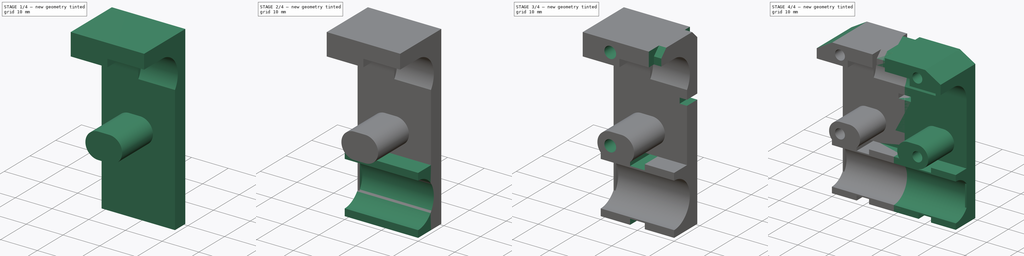
[diagram: build sequence overview — one tinted view per stage of 4, left to right]
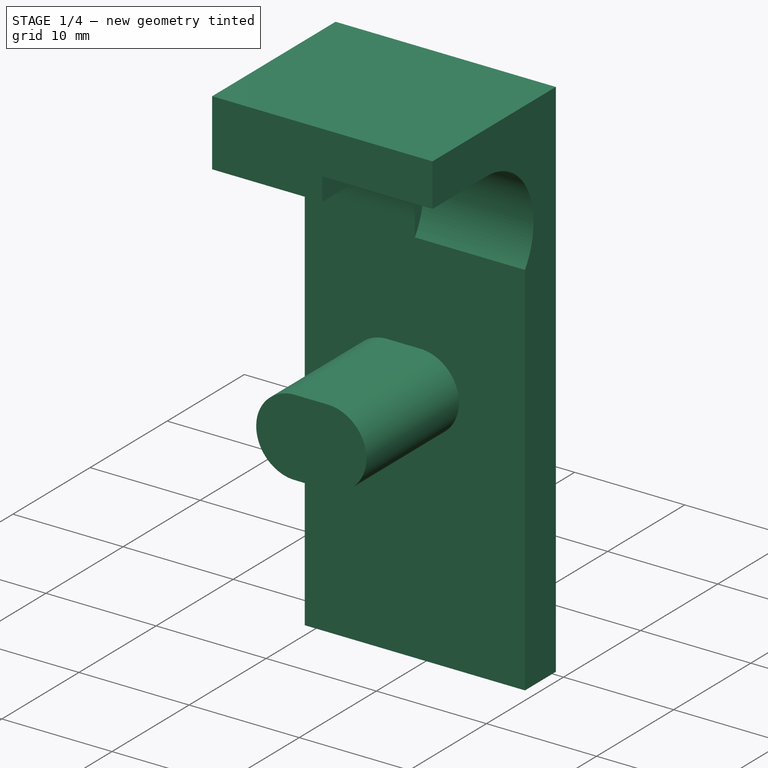
[diagram: stage 1 of 4 — iso view after this stage's code; geometry added in this stage tinted green]
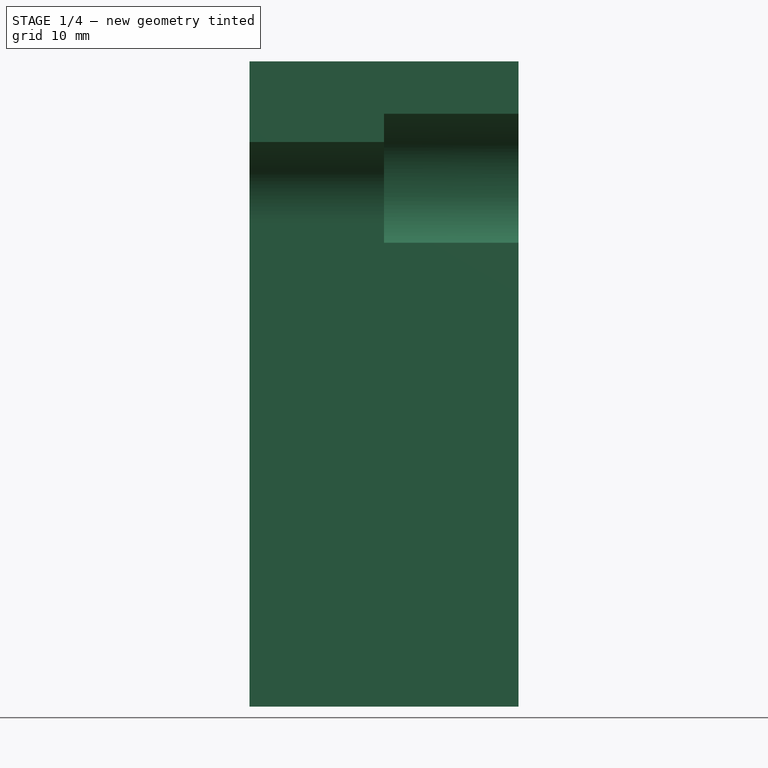
[diagram: stage 1 of 4 — front view after this stage's code; geometry added in this stage tinted green]
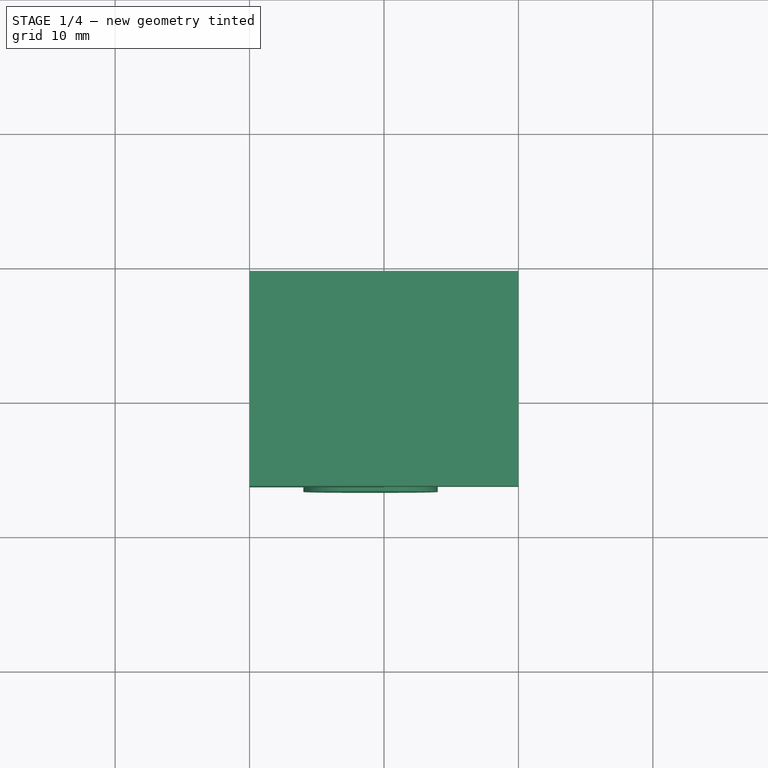
[diagram: stage 1 of 4 — top view after this stage's code; geometry added in this stage tinted green]
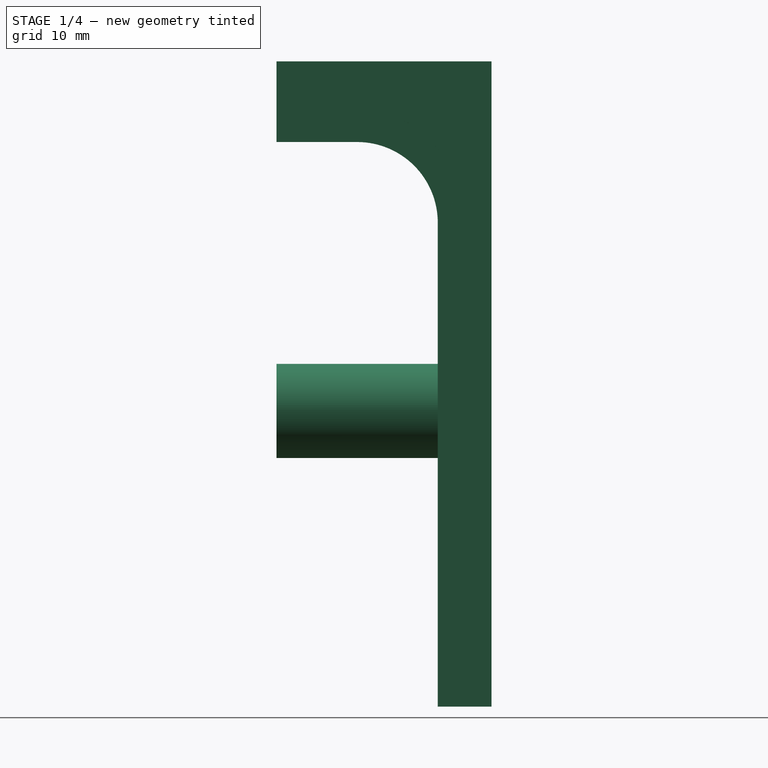
[diagram: stage 1 of 4 — right view after this stage's code; geometry added in this stage tinted green]
FCSTD DOCUMENT  (FreeCAD 0.14R3692 (Git))
Label: x-carriage
License: CC-BY 3.0
LicenseURL: http://creativecommons.org/licenses/by/3.0/
objects: Sketcher::SketchObject×10, Part::Feature×7, PartDesign::Pocket×6, PartDesign::Pad×3, Part::Box×1, Part::Fillet×1, Part::Chamfer×1, Part::Mirroring×1, Part::MultiFuse×1, App::DocumentObjectGroup×1
note: 40 computed .brp shape members not serialized (recipe doc carries the construction recipe); baked Part::Feature solids carry a one-line shape summary decoded from their .brp

FEATURE [Part::Box] Box  label="body-cube"
  Height = 48
  Length = 20
  Placement = pos=(-20,5,-8) rot=(0,0,1;0rad)
  Width = 4
FEATURE [Sketcher::SketchObject] Sketch001  label="body-spacer-sketch"
  Placement = pos=(-20,5,-8) rot=(1,0,0;1.5708rad)
  Support = -> Box [Face3]
  sketch-geometry (8):
    g0: LineSegment StartX=0 StartY=48 StartZ=0 EndX=20 EndY=48 EndZ=0
    g1: LineSegment StartX=20 StartY=48 StartZ=0 EndX=20 EndY=42 EndZ=0
    g2: LineSegment StartX=20 StartY=42 StartZ=0 EndX=0 EndY=42 EndZ=0
    g3: LineSegment StartX=0 StartY=42 StartZ=0 EndX=0 EndY=48 EndZ=0
    g4: ArcOfCircle CenterX=7.5 CenterY=22 CenterZ=0 NormalX=0 NormalY=0 NormalZ=1 Radius=3.5 StartAngle=1.57079 EndAngle=4.7124
    g5: ArcOfCircle CenterX=10.5 CenterY=22 CenterZ=0 NormalX=0 NormalY=0 NormalZ=1 Radius=3.5 StartAngle=4.71239 EndAngle=7.85398
    g6: LineSegment StartX=7.50002 StartY=18.5 StartZ=0 EndX=10.5 EndY=18.5 EndZ=0
    g7: LineSegment StartX=7.50002 StartY=25.5 StartZ=0 EndX=10.5 EndY=25.5 EndZ=0
  constraints (26):
    c: Coincident(g0,g1)
    c: Coincident(g1,g2)
    c: Coincident(g2,g3)
    c: Coincident(g3,g0)
    c: Horizontal(g0)
    c: Horizontal(g2)
    c: Vertical(g1)
    c: Vertical(g3)
    c: DistanceX(g0) = 20
    c: DistanceY(g1) = -6
    c: Tangent(g4,g6)
    c: Tangent(g4,g7)
    c: Tangent(g5,g6)
    c: Tangent(g5,g7)
    c: Coincident(g4,g7)
    c: Coincident(g4,g6)
    c: Coincident(g6,g5)
    c: Coincident(g7,g5)
    c: Horizontal(g6)
    c: Equal(g4,g5)
    c: Radius(g5) = 3.5
    c: DistanceX(g7) = 3
    c: PointOnObject(g0,g-2)
    c: DistanceY(g-1,g0) = 48
    c: DistanceX(g1,g4) = -12.5
    c: DistanceY(g4,g0) = 26
FEATURE [PartDesign::Pad] Pad001  label="body-spacer-pad"
  Length = 12
  Length2 = 100
  Placement = pos=(-20,5,-8) rot=(0,0,1;0rad)
  Sketch = -> Sketch001
  Type = 0
FEATURE [Part::Fillet] Fillet  label="bearing-top-fillet"
  Base = -> Pad001
  Edges = 1 edges r=6: [Edge15]
FEATURE [Sketcher::SketchObject] Sketch003  label="bearing-top-holder-cutout-sketch"
  Placement = pos=(0,0,0) rot=(0.57735,0.57735,0.57735;2.0944rad)
  Support = -> Fillet [Face1]
  sketch-geometry (4):
    g0: ArcOfCircle CenterX=0 CenterY=30 CenterZ=0 NormalX=0 NormalY=0 NormalZ=1 Radius=6.1 StartAngle=4.71239 EndAngle=7.85399
    g1: LineSegment StartX=-3.44115e-05 StartY=36.1 StartZ=0 EndX=-7.00003 EndY=36.1 EndZ=0
    g2: LineSegment StartX=-7.00003 StartY=36.1 StartZ=0 EndX=-7.00003 EndY=23.9 EndZ=0
    g3: LineSegment StartX=-7.00003 StartY=23.9 StartZ=0 EndX=9.3093e-08 EndY=23.9 EndZ=0
  constraints (13):
    c: Radius(g0) = 6.1
    c: Coincident(g1,g2)
    c: Coincident(g2,g3)
    c: Coincident(g0,g1)
    c: Coincident(g0,g3)
    c: Tangent(g0,g1)
    c: Tangent(g3,g0)
    c: PointOnObject(g0,g-2)
    c: Horizontal(g3)
    c: Horizontal(g1)
    c: Vertical(g2)
    c: DistanceY(g-1,g0) = 30
    c: DistanceX(g1) = -7
FEATURE [PartDesign::Pocket] Pocket  label="bearing-top-holder-cutout-pocket"
  Length = 10
  Sketch = -> Sketch003
  Type = 0
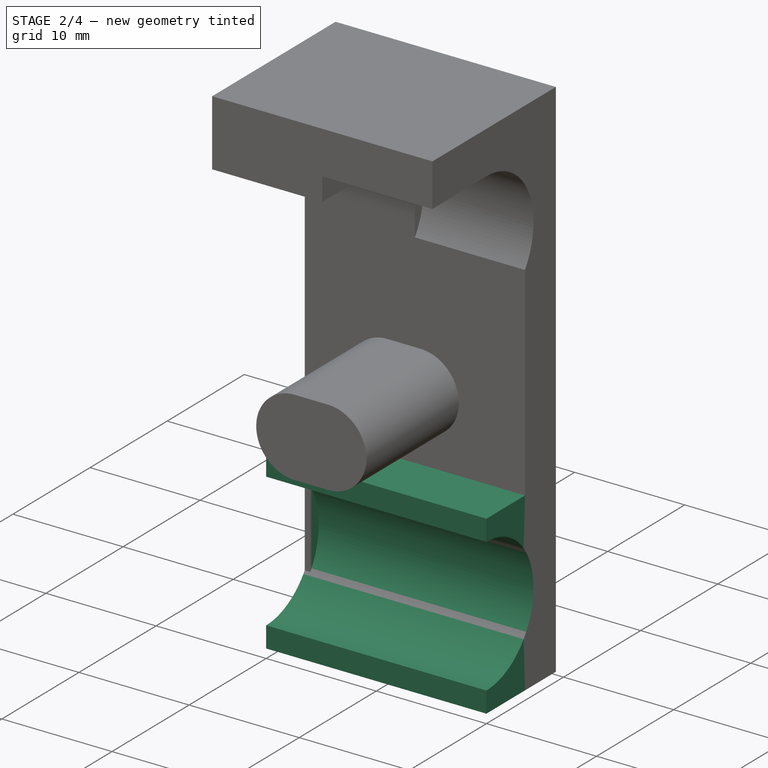
[diagram: stage 2 of 4 — iso view after this stage's code; geometry added in this stage tinted green]
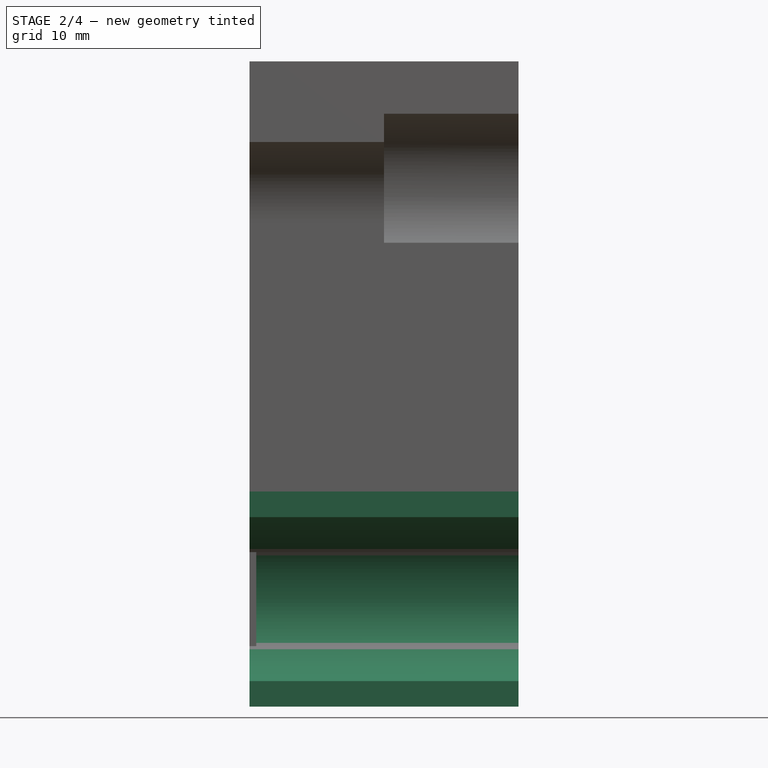
[diagram: stage 2 of 4 — front view after this stage's code; geometry added in this stage tinted green]
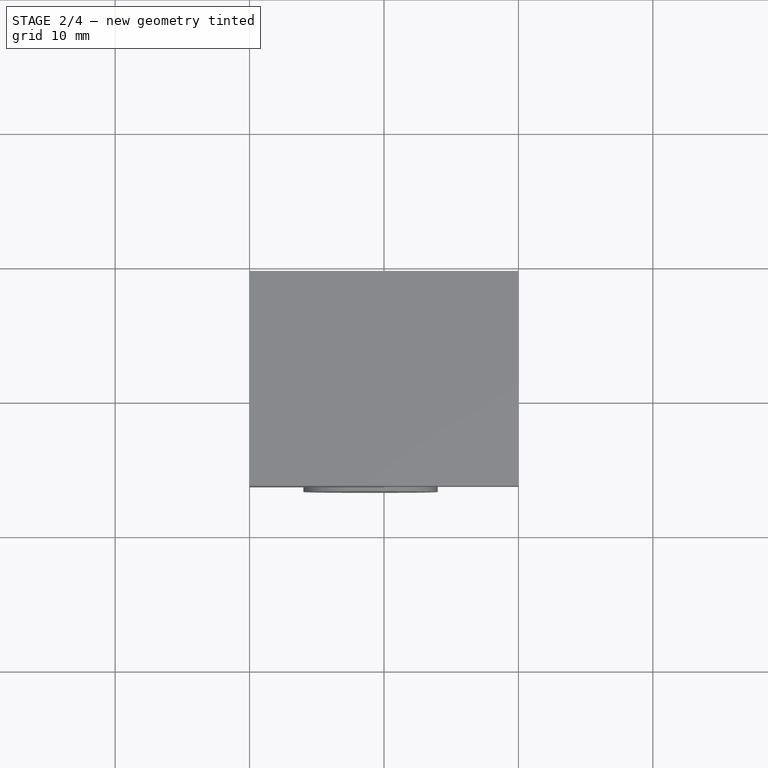
[diagram: stage 2 of 4 — top view after this stage's code; geometry added in this stage tinted green]
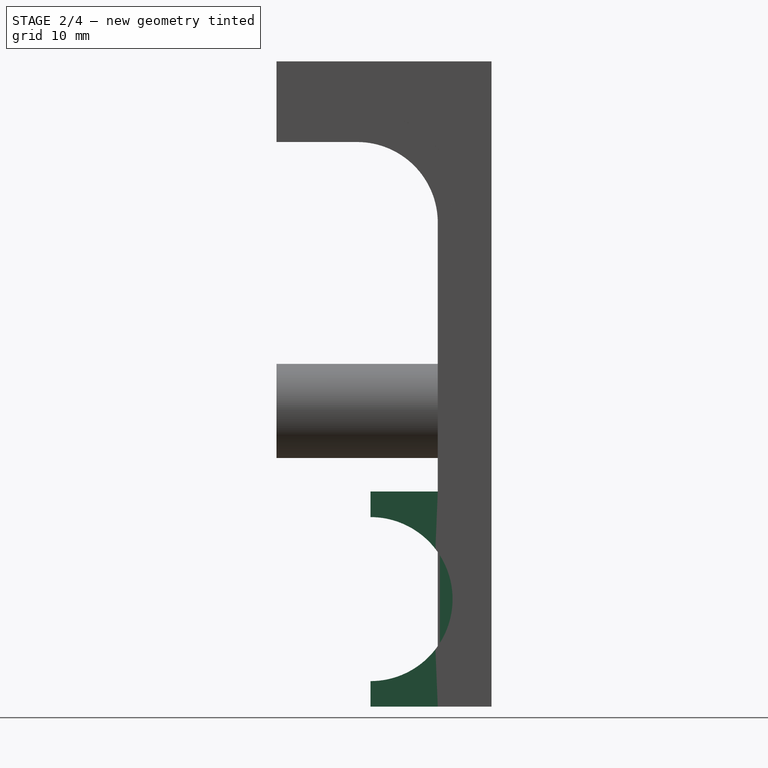
[diagram: stage 2 of 4 — right view after this stage's code; geometry added in this stage tinted green]
FEATURE [Sketcher::SketchObject] Sketch002  label="bearing-bottom-holder-sketch"
  Placement = pos=(0,5,0) rot=(1,0,0;1.5708rad)
  Support = -> Pocket [Face5]
  sketch-geometry (4):
    g0: LineSegment StartX=-20 StartY=8 StartZ=0 EndX=0 EndY=8 EndZ=0
    g1: LineSegment StartX=0 StartY=8 StartZ=0 EndX=0 EndY=-8 EndZ=0
    g2: LineSegment StartX=0 StartY=-8 StartZ=0 EndX=-20 EndY=-8 EndZ=0
    g3: LineSegment StartX=-20 StartY=-8 StartZ=0 EndX=-20 EndY=8 EndZ=0
  constraints (12):
    c: Coincident(g0,g1)
    c: Coincident(g1,g2)
    c: Coincident(g2,g3)
    c: Coincident(g3,g0)
    c: Horizontal(g0)
    c: Horizontal(g2)
    c: Vertical(g1)
    c: Vertical(g3)
    c: DistanceX(g2) = -20
    c: DistanceY(g1) = -16
    c: PointOnObject(g-1,g1)
    c: DistanceY(g-1,g1) = -8
FEATURE [PartDesign::Pad] Pad002  label="bearing-bottom-holder-pad"
  Length = 5
  Length2 = 100
  Sketch = -> Sketch002
  Type = 0
FEATURE [Sketcher::SketchObject] Sketch004  label="bearing-bottom-holder-cutout-sketch"
  Placement = pos=(0,0,0) rot=(0.57735,0.57735,0.57735;2.0944rad)
  Support = -> Pad002 [Face7]
  sketch-geometry (1):
    g0: Circle CenterX=0 CenterY=0 CenterZ=0 NormalX=0 NormalY=0 NormalZ=1 Radius=6.1
  constraints (2):
    c: Radius(g0) = 6.1
    c: Coincident(g0,g-1)
FEATURE [PartDesign::Pocket] Pocket001  label="bearing-bottom-holder-cutout-pocket"
  Length = 20
  Sketch = -> Sketch004
  Type = 0
FEATURE [Sketcher::SketchObject] Sketch005  label="bearing-bottom-holder-wall-sketch"
  Placement = pos=(-20,0,0) rot=(0.57735,-0.57735,-0.57735;2.0944rad)
  Support = -> Pocket001 [Face5]
  sketch-geometry (4):
    g0: LineSegment StartX=-9 StartY=8 StartZ=0 EndX=-5 EndY=8 EndZ=0
    g1: LineSegment StartX=-5 StartY=8 StartZ=0 EndX=-5 EndY=-8 EndZ=0
    g2: LineSegment StartX=-5 StartY=-8 StartZ=0 EndX=-9 EndY=-8 EndZ=0
    g3: LineSegment StartX=-9 StartY=-8 StartZ=0 EndX=-9 EndY=8 EndZ=0
  constraints (12):
    c: Coincident(g0,g1)
    c: Coincident(g1,g2)
    c: Coincident(g2,g3)
    c: Coincident(g3,g0)
    c: Horizontal(g0)
    c: Horizontal(g2)
    c: Vertical(g1)
    c: Vertical(g3)
    c: DistanceX(g2) = -4
    c: DistanceY(g1) = -16
    c: DistanceX(g-1,g0) = -9
    c: DistanceY(g-1,g0) = 8
FEATURE [PartDesign::Pad] Pad003  label="bearing-bottom-holder-wall-pad"
  Length = 0.5
  Length2 = 100
  Reversed = true
  Sketch = -> Sketch005
  Type = 0
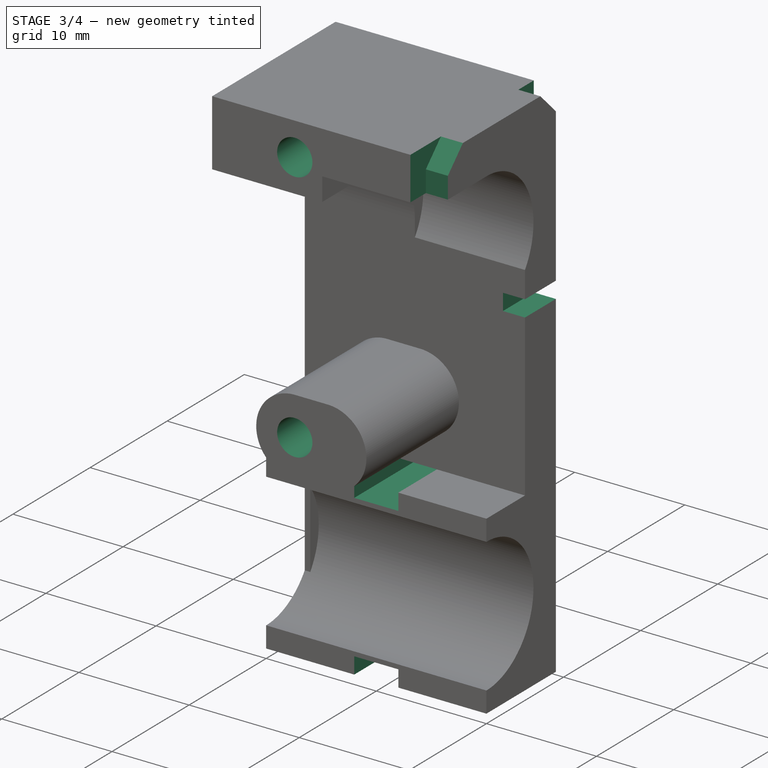
[diagram: stage 3 of 4 — iso view after this stage's code; geometry added in this stage tinted green]
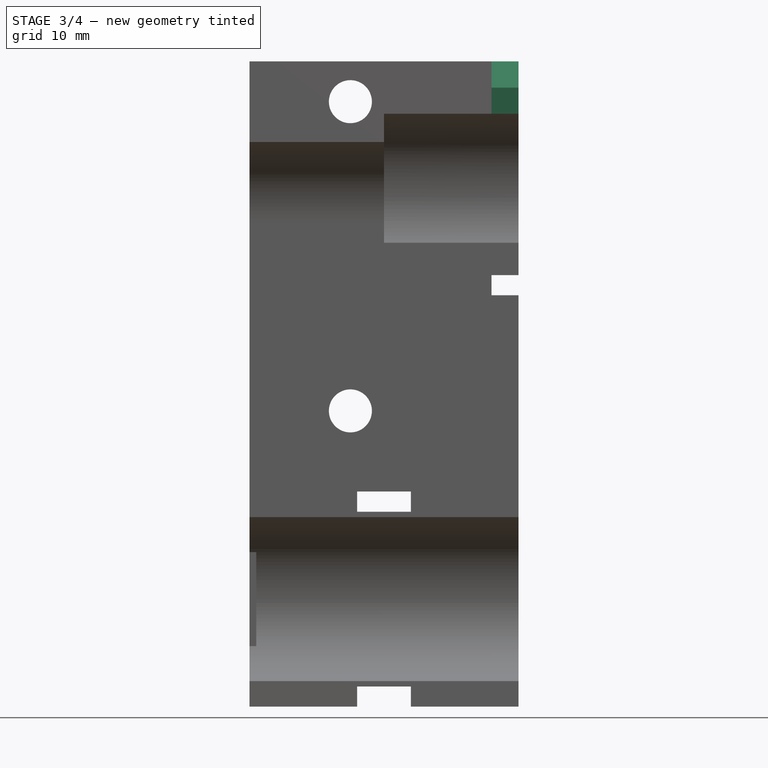
[diagram: stage 3 of 4 — front view after this stage's code; geometry added in this stage tinted green]
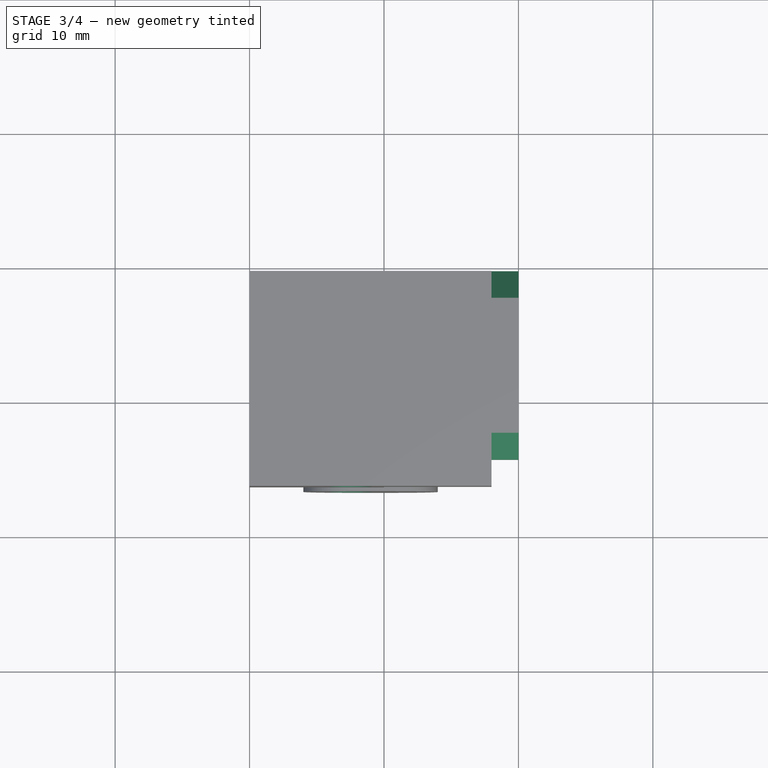
[diagram: stage 3 of 4 — top view after this stage's code; geometry added in this stage tinted green]
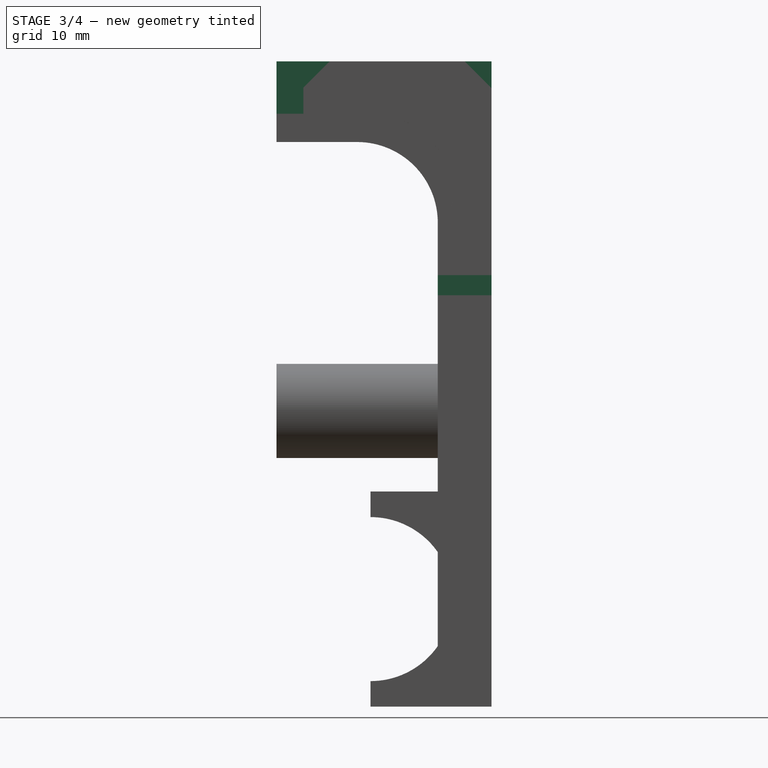
[diagram: stage 3 of 4 — right view after this stage's code; geometry added in this stage tinted green]
FEATURE [Sketcher::SketchObject] Sketch006  label="mounting-screw-hole-sketch"
  Placement = pos=(0,-7,0) rot=(1,0,0;1.5708rad)
  Support = -> Pad003 [Face36]
  sketch-geometry (2):
    g0: Circle CenterX=-12.5 CenterY=14 CenterZ=0 NormalX=0 NormalY=0 NormalZ=1 Radius=1.6
    g1: Circle CenterX=-12.5 CenterY=37 CenterZ=0 NormalX=0 NormalY=0 NormalZ=1 Radius=1.6
  constraints (6):
    c: Radius(g0) = 1.6
    c: Equal(g0,g1)
    c: DistanceX(g-1,g0) = -12.5
    c: DistanceX(g-1,g1) = -12.5
    c: DistanceY(g1,g0) = -23
    c: DistanceY(g-1,g0) = 14
FEATURE [PartDesign::Pocket] Pocket002  label="mounting-screw-hole-pocket"
  Length = 16
  Sketch = -> Sketch006
  Type = 0
FEATURE [Sketcher::SketchObject] Sketch007  label="bearing-bottom-ziptie-sketch"
  Placement = pos=(0,0,0) rot=(1,0,0;1.5708rad)
  Support = -> Pocket002 [Face13]
  sketch-geometry (8):
    g0: LineSegment StartX=-12 StartY=-6.5 StartZ=0 EndX=-8 EndY=-6.5 EndZ=0
    g1: LineSegment StartX=-8 StartY=-6.5 StartZ=0 EndX=-8 EndY=-8 EndZ=0
    g2: LineSegment StartX=-8 StartY=-8 StartZ=0 EndX=-12 EndY=-8 EndZ=0
    g3: LineSegment StartX=-12 StartY=-8 StartZ=0 EndX=-12 EndY=-6.5 EndZ=0
    g4: LineSegment StartX=-12 StartY=8 StartZ=0 EndX=-8 EndY=8 EndZ=0
    g5: LineSegment StartX=-8 StartY=8 StartZ=0 EndX=-8 EndY=6.5 EndZ=0
    g6: LineSegment StartX=-8 StartY=6.5 StartZ=0 EndX=-12 EndY=6.5 EndZ=0
    g7: LineSegment StartX=-12 StartY=6.5 StartZ=0 EndX=-12 EndY=8 EndZ=0
  constraints (24):
    c: Coincident(g0,g1)
    c: Coincident(g1,g2)
    c: Coincident(g2,g3)
    c: Coincident(g3,g0)
    c: Horizontal(g0)
    c: Horizontal(g2)
    c: Vertical(g1)
    c: Vertical(g3)
    c: Coincident(g4,g5)
    c: Coincident(g5,g6)
    c: Coincident(g6,g7)
    c: Coincident(g7,g4)
    c: Horizontal(g4)
    c: Horizontal(g6)
    c: Vertical(g5)
    c: Vertical(g7)
    c: DistanceX(g2) = -4
    c: DistanceY(g1) = -1.5
    c: DistanceX(g-1,g1) = -8
    c: Equal(g2,g6)
    c: Equal(g5,g1)
    c: DistanceX(g-1,g5) = -8
    c: DistanceY(g4,g2) = -16
    c: DistanceY(g-1,g1) = -8
FEATURE [PartDesign::Pocket] Pocket003  label="bearing-bottom-ziptie-pocket"
  Length = 9
  Sketch = -> Sketch007
  Type = 0
FEATURE [Sketcher::SketchObject] Sketch008  label="bearing-top-ziptie-sketch"
  Placement = pos=(0,0,0) rot=(0.57735,0.57735,0.57735;2.0944rad)
  Support = -> Pocket003 [Face1]
  sketch-geometry (12):
    g0: LineSegment StartX=-3.05 StartY=40 StartZ=0 EndX=-5 EndY=38.05 EndZ=0
    g1: LineSegment StartX=-5 StartY=38.05 StartZ=0 EndX=-5 EndY=36.1 EndZ=0
    g2: LineSegment StartX=-5 StartY=36.1 StartZ=0 EndX=-7 EndY=36.1 EndZ=0
    g3: LineSegment StartX=-7 StartY=36.1 StartZ=0 EndX=-7 EndY=40 EndZ=0
    g4: LineSegment StartX=-7 StartY=40 StartZ=0 EndX=-3.05 EndY=40 EndZ=0
    g5: LineSegment StartX=7 StartY=40 StartZ=0 EndX=9 EndY=38 EndZ=0
    g6: LineSegment StartX=9 StartY=38 StartZ=0 EndX=9 EndY=40 EndZ=0
    g7: LineSegment StartX=9 StartY=40 StartZ=0 EndX=7 EndY=40 EndZ=0
    g8: LineSegment StartX=5 StartY=24.1 StartZ=0 EndX=9 EndY=24.1 EndZ=0
    g9: LineSegment StartX=9 StartY=24.1 StartZ=0 EndX=9 EndY=22.6 EndZ=0
    g10: LineSegment StartX=9 StartY=22.6 StartZ=0 EndX=5 EndY=22.6 EndZ=0
    g11: LineSegment StartX=5 StartY=22.6 StartZ=0 EndX=5 EndY=24.1 EndZ=0
  constraints (36):
    c: Coincident(g0,g1)
    c: Coincident(g1,g2)
    c: Coincident(g2,g3)
    c: Coincident(g3,g4)
    c: Coincident(g4,g0)
    c: Coincident(g5,g6)
    c: Coincident(g6,g7)
    c: Coincident(g7,g5)
    c: Coincident(g8,g9)
    c: Coincident(g9,g10)
    c: Coincident(g10,g11)
    c: Coincident(g11,g8)
    c: Horizontal(g8)
    c: Horizontal(g10)
    c: Vertical(g9)
    c: Vertical(g11)
    c: DistanceY(g9) = -1.5
    c: DistanceX(g10) = -4
    c: DistanceX(g-1,g10) = 5
    c: DistanceY(g-1,g8) = 24.1
    c: Horizontal(g4)
    c: Horizontal(g2)
    c: Horizontal(g7)
    c: Vertical(g6)
    c: Vertical(g1)
    c: Vertical(g3)
    c: DistanceY(g6) = 2
    c: Equal(g6,g7)
    c: DistanceY(g-1,g6) = 40
    c: DistanceX(g-1,g6) = 9
    c: DistanceY(g3) = 3.9
    c: DistanceX(g2) = -2
    c: DistanceY(g1) = -1.95
    c: Angle(g1,g0) = 2.35619
    c: DistanceX(g-1,g3) = -7
    c: DistanceY(g-1,g3) = 40
FEATURE [PartDesign::Pocket] Pocket004  label="bearing-top-ziptie-pocket"
  Length = 2
  Sketch = -> Sketch008
  Type = 0
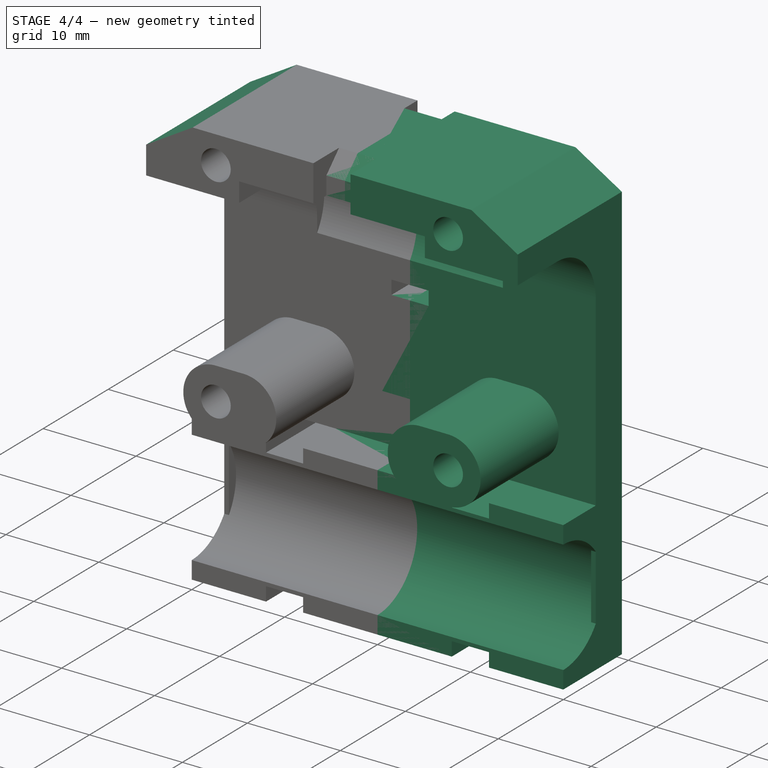
[diagram: stage 4 of 4 — iso view after this stage's code; geometry added in this stage tinted green]
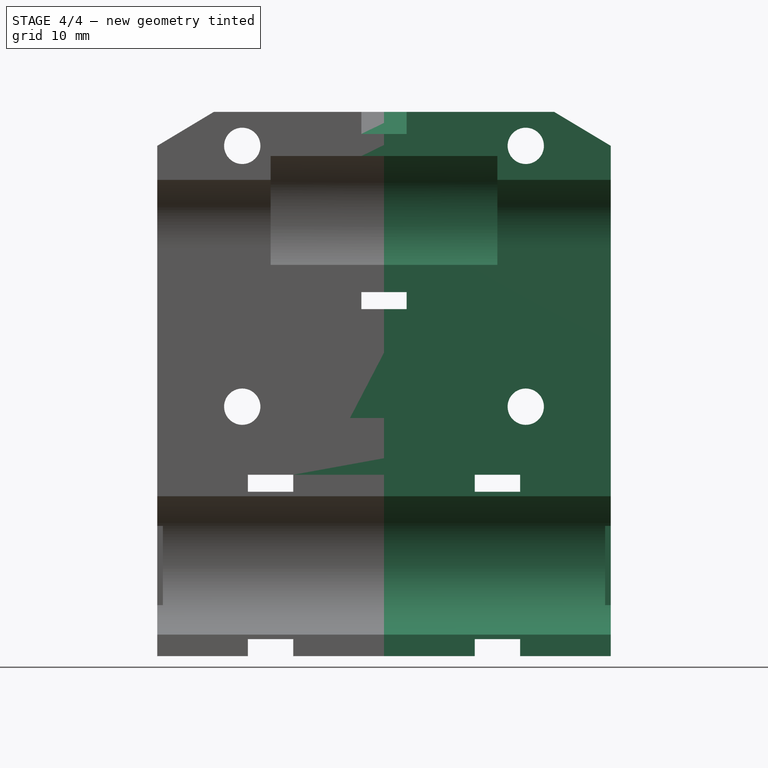
[diagram: stage 4 of 4 — front view after this stage's code; geometry added in this stage tinted green]
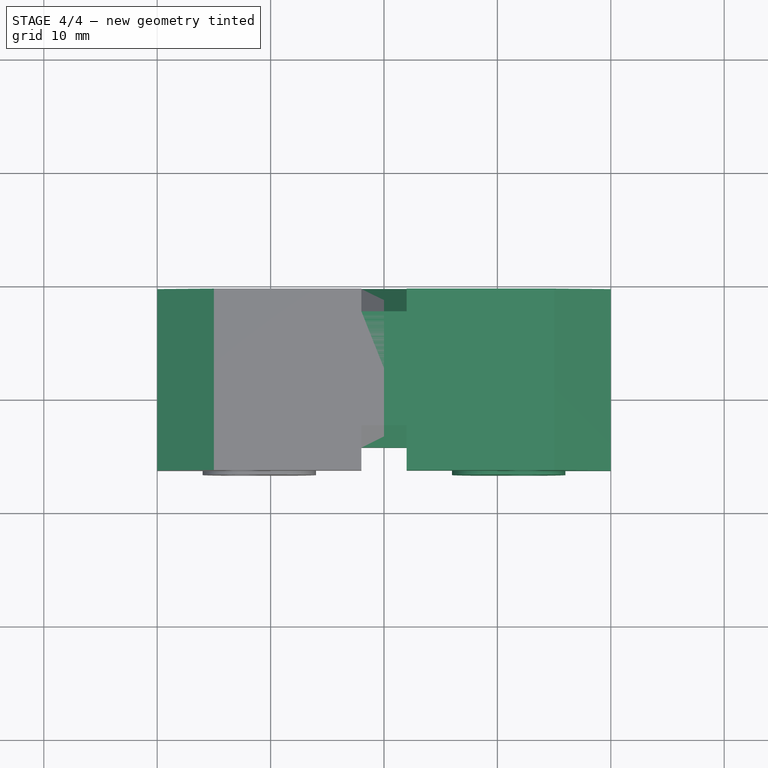
[diagram: stage 4 of 4 — top view after this stage's code; geometry added in this stage tinted green]
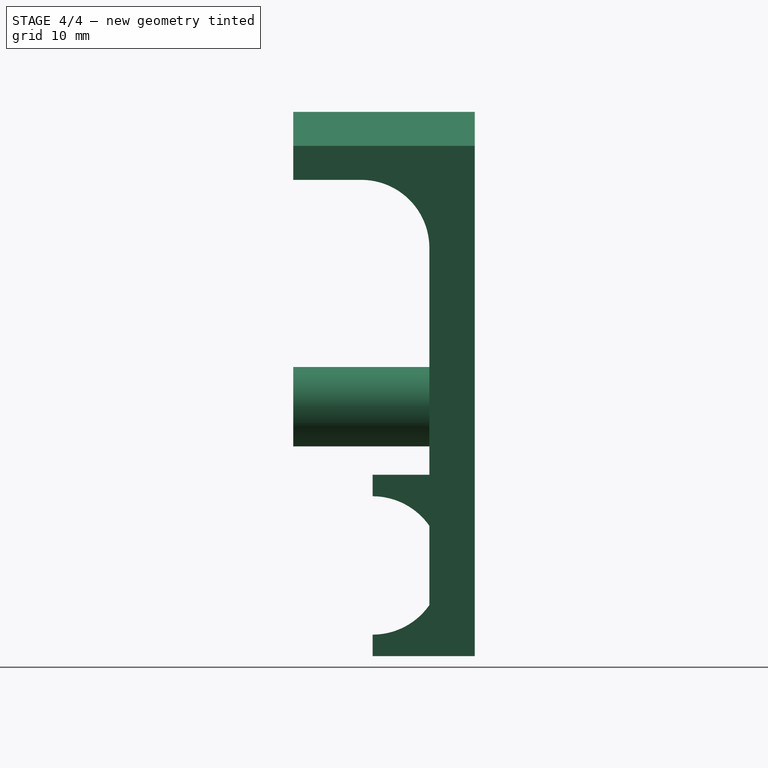
[diagram: stage 4 of 4 — right view after this stage's code; geometry added in this stage tinted green]
FEATURE [Part::Chamfer] Chamfer002  label="body-top-chamfer-left"
  Base = -> Pocket004
  Edges = 1 edges: [Edge146 r1=3 r2=5]
FEATURE [Part::Mirroring] Part__Mirroring001  label="body-top-chamfer-right"
  Base = (0,0,0)
  Normal = (1,0,0)
  Source = -> Chamfer002
FEATURE [Part::MultiFuse] Fusion002  label="body-left-right-fusion"
  Shapes = -> [Part__Mirroring001,Chamfer002]
FEATURE [Part::Feature] Fusion002001  label="body-left-right-fusion-refined"
  shape: bbox 40 x 16 x 48 mm, 72 faces (baked)
FEATURE [Sketcher::SketchObject] Sketch009  label="active-fan-hole-sketch"
  Placement = pos=(0,5,0) rot=(1,0,0;1.5708rad)
  Support = -> Fusion002001 [Face60]
  sketch-geometry (4):
    g0: LineSegment StartX=-3 StartY=13 StartZ=0 EndX=3 EndY=13 EndZ=0
    g1: LineSegment StartX=3 StartY=13 StartZ=0 EndX=3 EndY=10 EndZ=0
    g2: LineSegment StartX=3 StartY=10 StartZ=0 EndX=-3 EndY=10 EndZ=0
    g3: LineSegment StartX=-3 StartY=10 StartZ=0 EndX=-3 EndY=13 EndZ=0
  constraints (12):
    c: Coincident(g0,g1)
    c: Coincident(g1,g2)
    c: Coincident(g2,g3)
    c: Coincident(g3,g0)
    c: Horizontal(g0)
    c: Horizontal(g2)
    c: Vertical(g1)
    c: Vertical(g3)
    c: DistanceX(g2) = -6
    c: DistanceY(g1) = -3
    c: DistanceX(g-1,g0) = 3
    c: DistanceY(g-1,g1) = 10
FEATURE [PartDesign::Pocket] Pocket005  label="active-fan-hole-pocket"
  Length = 4
  Sketch = -> Sketch009
  Type = 0
FEATURE [Sketcher::SketchObject] Sketch010  label="endstop-hitter-sketch"
  Placement = pos=(-20,0,0) rot=(0.57735,-0.57735,-0.57735;2.0944rad)
  Support = -> Pocket005 [Face23]
  sketch-geometry (4):
    g0: LineSegment StartX=-5 StartY=25 StartZ=0 EndX=-9 EndY=25 EndZ=0
    g1: LineSegment StartX=-9 StartY=25 StartZ=0 EndX=-9 EndY=4 EndZ=0
    g2: LineSegment StartX=-9 StartY=4 StartZ=0 EndX=-5 EndY=4 EndZ=0
    g3: LineSegment StartX=-5 StartY=4 StartZ=0 EndX=-5 EndY=25 EndZ=0
  constraints (12):
    c: Coincident(g0,g1)
    c: Coincident(g1,g2)
    c: Coincident(g2,g3)
    c: Coincident(g3,g0)
    c: Horizontal(g0)
    c: Horizontal(g2)
    c: Vertical(g1)
    c: Vertical(g3)
    c: DistanceX(g-1,g2) = -5
    c: DistanceX(g2) = 4
    c: DistanceY(g1) = -21
    c: DistanceY(g-1,g2) = 4
FEATURE [Part::Feature] Pocket005001  label="x-carriage"
  shape: bbox 40 x 16 x 48 mm, 76 faces (baked)
FEATURE [Part::Feature] Part__Feature  label="smooth-rod-06-300-x-bottom"
  Placement = pos=(235,0,0) rot=(-0.57735,-0.57735,0.57735;2.0944rad)
  shape: bbox 300 x 6 x 6 mm, 3 faces (baked)
FEATURE [Part::Feature] Part__Feature001  label="smooth-rod-06-300-x-top"
  Placement = pos=(235,0,30) rot=(-0.57735,-0.57735,0.57735;2.0944rad)
  shape: bbox 300 x 6 x 6 mm, 3 faces (baked)
FEATURE [Part::Feature] Part__Feature002  label="rjmp0106-linear-bearing-x-top"
  Placement = pos=(0,0,30) rot=(0,0,1;1.5708rad)
  shape: bbox 19 x 12 x 12 mm, 52 faces (baked)
FEATURE [Part::Feature] Part__Feature003  label="rjmp0106-linear-bearing-x-bottom-left"
  Placement = pos=(-10,0,0) rot=(0,0,1;1.5708rad)
  shape: bbox 19 x 12 x 12 mm, 52 faces (baked)
FEATURE [Part::Feature] Part__Feature004  label="rjmp0106-linear-bearing-x-bottom-right"
  Placement = pos=(10,0,0) rot=(0,0,1;1.5708rad)
  shape: bbox 19 x 12 x 12 mm, 52 faces (baked)
FEATURE [App::DocumentObjectGroup] Grupo  label="aux"
  Group = -> [Part__Feature,Part__Feature001,Part__Feature002,Part__Feature003,Part__Feature004]
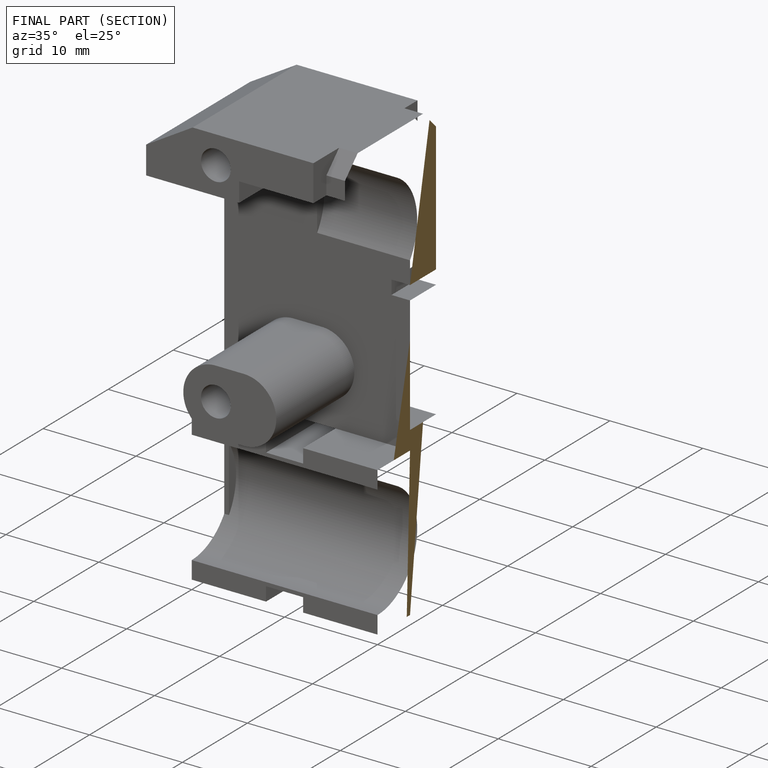
[diagram: finished part — half-section view (interior)]
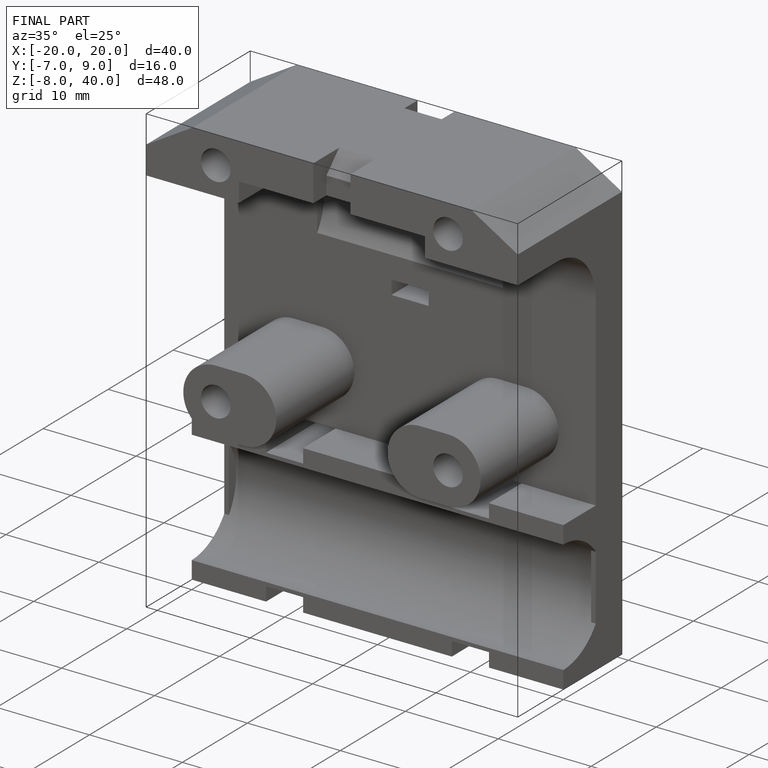
[diagram: finished part — iso view with bounding-box wireframe]
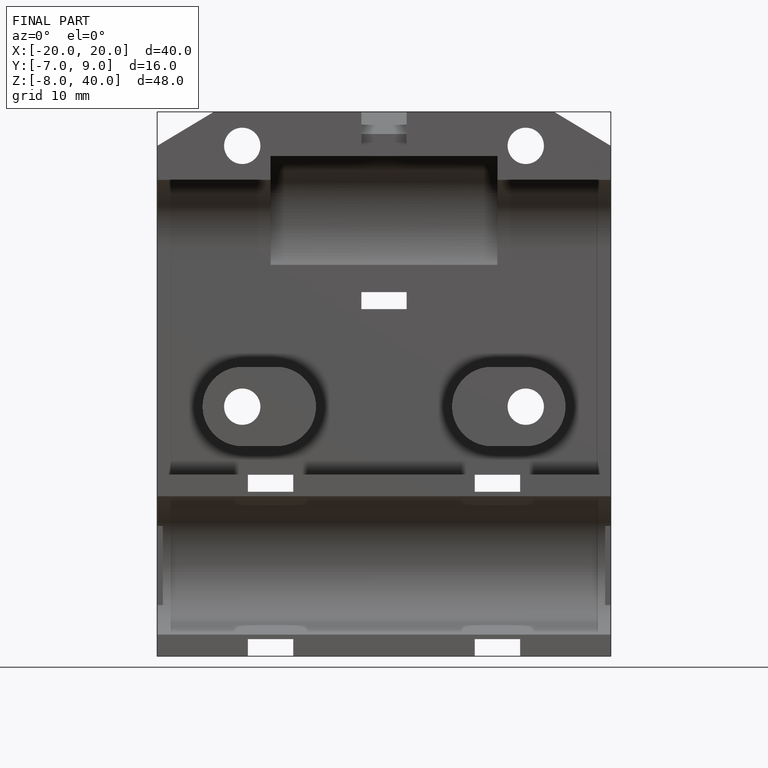
[diagram: finished part — front view with bounding-box wireframe]
